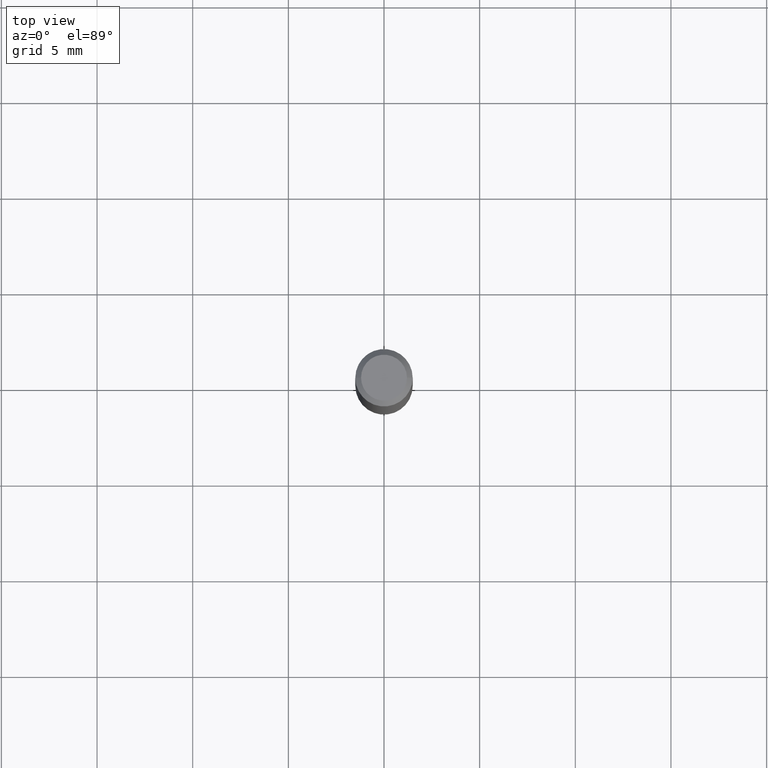
[diagram: clean part render]
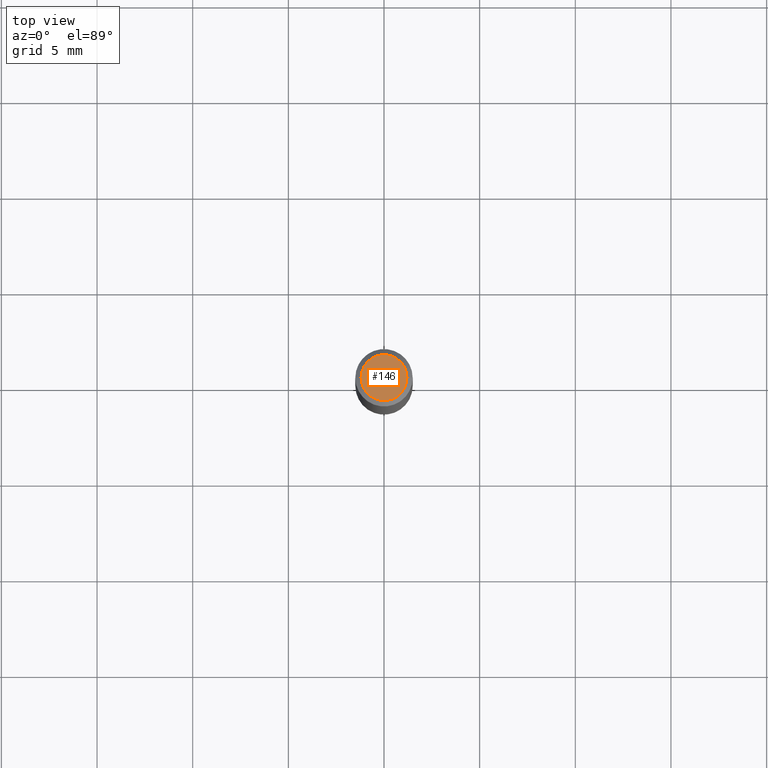
[diagram: same view with one face highlighted and labeled with its STEP entity id]
A machine part, top view. The second image highlights one B-rep face of the part: STEP entity #146.
In plain terms, the highlighted planar face has unit normal (0, -0, -1).
Its self-contained STEP definition (entity closure, byte-faithful):
#20 = EDGE_LOOP ( 'NONE', ( #136, #127 ) ) ;
#46 = CARTESIAN_POINT ( 'NONE',  ( 8.265746106709734507E-48, -1.180129479067563789E-33, -3.380025165646692144E-19 ) ) ;
#49 = DIRECTION ( 'NONE',  ( 2.438088387897960049E-29, -3.491481338843145188E-15, -1.000000000000000000 ) ) ;
#52 = CIRCLE ( 'NONE', #371, 0.04724000000000000421 ) ;
#68 = CARTESIAN_POINT ( 'NONE',  ( 0.04724000000000000421, -3.852183633974369345E-16, -3.380025165621689721E-19 ) ) ;
#75 = AXIS2_PLACEMENT_3D ( 'NONE', #444, #448, #484 ) ;
#88 = CARTESIAN_POINT ( 'NONE',  ( 4.132873053354867254E-48, -5.900647395337818946E-34, -1.690012582823346072E-19 ) ) ;
#92 = EDGE_CURVE ( 'NONE', #172, #98, #288, .T. ) ;
#98 = VERTEX_POINT ( 'NONE', #68 ) ;
#127 = ORIENTED_EDGE ( 'NONE', *, *, #234, .T. ) ;
#136 = ORIENTED_EDGE ( 'NONE', *, *, #92, .T. ) ;
#146 = ADVANCED_FACE ( 'NONE', ( #261 ), #305, .F. ) ;
#172 = VERTEX_POINT ( 'NONE', #237 ) ;
#198 = DIRECTION ( 'NONE',  ( -1.000000000000000000, 6.982962677686265922E-15, -4.876176775795935793E-29 ) ) ;
#234 = EDGE_CURVE ( 'NONE', #98, #172, #52, .T. ) ;
#237 = CARTESIAN_POINT ( 'NONE',  ( -0.04724000000000000421, 3.504923541997677355E-16, -3.380025165670481712E-19 ) ) ;
#243 = AXIS2_PLACEMENT_3D ( 'NONE', #88, #49, #198 ) ;
#261 = FACE_OUTER_BOUND ( 'NONE', #20, .T. ) ;
#288 = CIRCLE ( 'NONE', #75, 0.04724000000000000421 ) ;
#305 = PLANE ( 'NONE',  #243 ) ;
#307 = DIRECTION ( 'NONE',  ( -2.445468806185136597E-29, 3.491481338843145583E-15, 1.000000000000000000 ) ) ;
#351 = DIRECTION ( 'NONE',  ( 1.000000000000000000, -6.982962677686266711E-15, 4.876185090822587894E-29 ) ) ;
#371 = AXIS2_PLACEMENT_3D ( 'NONE', #46, #307, #351 ) ;
#444 = CARTESIAN_POINT ( 'NONE',  ( 8.265746106709734507E-48, -1.180129479067563789E-33, -3.380025165646692144E-19 ) ) ;
#448 = DIRECTION ( 'NONE',  ( -2.445468806185136597E-29, 3.491481338843145583E-15, 1.000000000000000000 ) ) ;
#484 = DIRECTION ( 'NONE',  ( 1.000000000000000000, -6.982962677686266711E-15, 4.876185090822587894E-29 ) ) ;